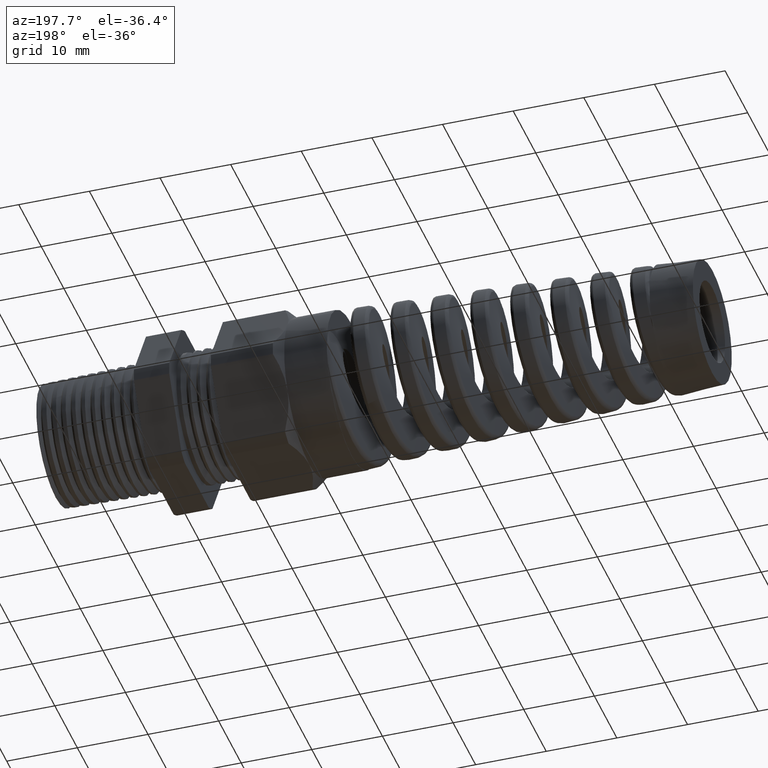
[diagram: clean part render]
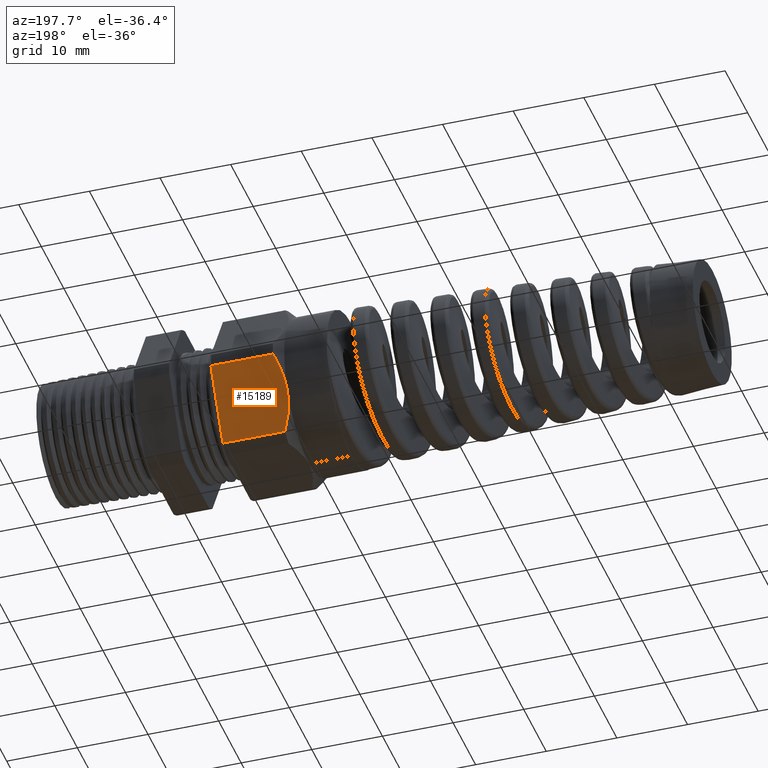
[diagram: same view with one face highlighted and labeled with its STEP entity id]
A machine part, auxiliary view. The second image highlights one B-rep face of the part: STEP entity #15189.
In plain terms, the highlighted planar face has unit normal (0, 0.866, -0.5).
Its self-contained STEP definition (entity closure, byte-faithful):
#13799 = CARTESIAN_POINT ( 'NONE',  ( -1.099157415158389600, 0.4648155211958816000, -0.06491590114212528200 ) ) ;
#13800 = CARTESIAN_POINT ( 'NONE',  ( -1.111286394514541500, 0.4475652507652401200, -0.09479424597229950400 ) ) ;
#13801 = CARTESIAN_POINT ( 'NONE',  ( -1.127942311785731900, 0.4126204045939865800, -0.1553204950035895800 ) ) ;
#13802 = CARTESIAN_POINT ( 'NONE',  ( -1.132519685039369700, 0.3948515912391095700, -0.1860969825244447300 ) ) ;
#13803 = CARTESIAN_POINT ( 'NONE',  ( -1.132519685039370400, 0.3767210506462311800, -0.2175000000000001400 ) ) ;
#13805 = CARTESIAN_POINT ( 'NONE',  ( -1.132519685039370400, 0.3767210506462311800, -0.2175000000000001400 ) ) ;
#13806 = CARTESIAN_POINT ( 'NONE',  ( -1.132519685039369500, 0.3676495597967362500, -0.2332122830517214500 ) ) ;
#13807 = CARTESIAN_POINT ( 'NONE',  ( -1.131354988471799500, 0.3584812283341806700, -0.2490922989655001400 ) ) ;
#13808 = CARTESIAN_POINT ( 'NONE',  ( -1.126908158158723200, 0.3405629272155460400, -0.2801277068882933000 ) ) ;
#13809 = CARTESIAN_POINT ( 'NONE',  ( -1.123634860337035400, 0.3317346034573627800, -0.2954188121831341500 ) ) ;
#13810 = CARTESIAN_POINT ( 'NONE',  ( -1.084669685039370400, 0.4815054990391101600, -0.03600801154045463900 ) ) ;
#13811 = B_SPLINE_CURVE_WITH_KNOTS ( 'NONE', 3,
 ( #13803, #13802, #13801, #13800, #13799, #13928 ),
 .UNSPECIFIED., .F., .F.,
 ( 4, 2, 4 ),
 ( 0.005463532759325801100, 0.008193301819514648900, 0.01092307087970349600 ),
 .UNSPECIFIED. ) ;
#13851 = DIRECTION ( 'NONE',  ( -1.000000000000000000, 0.0000000000000000000, 0.0000000000000000000 ) ) ;
#13852 = VECTOR ( 'NONE', #13851, 39.37007874015748100 ) ;
#13859 = CARTESIAN_POINT ( 'NONE',  ( 0.2800000000000000300, 0.2719366022533522000, -0.3989919884595455300 ) ) ;
#13860 = DIRECTION ( 'NONE',  ( 0.0000000000000000000, 0.4999999999999998300, 0.8660254037844386000 ) ) ;
#13861 = DIRECTION ( 'NONE',  ( 0.0000000000000000000, 0.8660254037844387100, -0.4999999999999998900 ) ) ;
#13862 = CARTESIAN_POINT ( 'NONE',  ( 0.2800000000000000300, 0.4815054990391101600, -0.03600801154045462500 ) ) ;
#13863 = AXIS2_PLACEMENT_3D ( 'NONE', #13862, #13861, #13860 ) ;
#13864 = LINE ( 'NONE', #13859, #13852 ) ;
#13865 = PLANE ( 'NONE',  #13863 ) ;
#13866 = FACE_OUTER_BOUND ( 'NONE', #15190, .T. ) ;
#13879 = CARTESIAN_POINT ( 'NONE',  ( -1.111099787961890500, 0.3055879730118451500, -0.3407061045614981400 ) ) ;
#13880 = CARTESIAN_POINT ( 'NONE',  ( -1.099139491192393700, 0.2886059315482661400, -0.3701198631926584900 ) ) ;
#13881 = CARTESIAN_POINT ( 'NONE',  ( -1.084669685039370400, 0.2719366022533522000, -0.3989919884595455300 ) ) ;
#13882 = B_SPLINE_CURVE_WITH_KNOTS ( 'NONE', 3,
 ( #13881, #13880, #13879, #13809, #13808, #13807, #13806, #13805 ),
 .UNSPECIFIED., .F., .F.,
 ( 4, 2, 2, 4 ),
 ( 2.483252225667815900E-007, 0.002731890542274185000, 0.004097711650799993300, 0.005463532759325801100 ),
 .UNSPECIFIED. ) ;
#13883 = CARTESIAN_POINT ( 'NONE',  ( -1.084669685039370400, 0.2719366022533522000, -0.3989919884595455300 ) ) ;
#13884 = CARTESIAN_POINT ( 'NONE',  ( -0.7388188976377955100, 0.2719366022533522000, -0.3989919884595455300 ) ) ;
#13928 = CARTESIAN_POINT ( 'NONE',  ( -1.084669685039370400, 0.4815054990391101600, -0.03600801154045463900 ) ) ;
#13998 = CARTESIAN_POINT ( 'NONE',  ( -0.7388188976377955100, 0.4679710506462310700, -0.05945036380934009400 ) ) ;
#13999 = LINE ( 'NONE', #13998, #14120 ) ;
#14030 = CARTESIAN_POINT ( 'NONE',  ( -0.7388188976377955100, 0.4815054990391101100, -0.03600801154045462500 ) ) ;
#14119 = DIRECTION ( 'NONE',  ( 0.0000000000000000000, 0.4999999999999998300, 0.8660254037844386000 ) ) ;
#14120 = VECTOR ( 'NONE', #14119, 39.37007874015748900 ) ;
#14941 = CARTESIAN_POINT ( 'NONE',  ( -1.132519685039370400, 0.3767210506462311800, -0.2175000000000001400 ) ) ;
#15030 = DIRECTION ( 'NONE',  ( -1.000000000000000000, 0.0000000000000000000, 0.0000000000000000000 ) ) ;
#15031 = VECTOR ( 'NONE', #15030, 39.37007874015748100 ) ;
#15032 = CARTESIAN_POINT ( 'NONE',  ( 0.2800000000000000300, 0.4815054990391101600, -0.03600801154045462500 ) ) ;
#15033 = LINE ( 'NONE', #15032, #15031 ) ;
#15052 = EDGE_CURVE ( 'NONE', #15224, #15172, #15033, .T. ) ;
#15066 = VERTEX_POINT ( 'NONE', #14941 ) ;
#15166 = VERTEX_POINT ( 'NONE', #13884 ) ;
#15167 = VERTEX_POINT ( 'NONE', #13883 ) ;
#15168 = ORIENTED_EDGE ( 'NONE', *, *, #15169, .T. ) ;
#15169 = EDGE_CURVE ( 'NONE', #15167, #15066, #13882, .T. ) ;
#15170 = ORIENTED_EDGE ( 'NONE', *, *, #15171, .T. ) ;
#15171 = EDGE_CURVE ( 'NONE', #15066, #15172, #13811, .T. ) ;
#15172 = VERTEX_POINT ( 'NONE', #13810 ) ;
#15173 = ORIENTED_EDGE ( 'NONE', *, *, #15052, .F. ) ;
#15189 = ADVANCED_FACE ( 'NONE', ( #13866 ), #13865, .T. ) ;
#15190 = EDGE_LOOP ( 'NONE', ( #15191, #15168, #15170, #15173, #15225 ) ) ;
#15191 = ORIENTED_EDGE ( 'NONE', *, *, #15192, .T. ) ;
#15192 = EDGE_CURVE ( 'NONE', #15166, #15167, #13864, .T. ) ;
#15213 = EDGE_CURVE ( 'NONE', #15166, #15224, #13999, .T. ) ;
#15224 = VERTEX_POINT ( 'NONE', #14030 ) ;
#15225 = ORIENTED_EDGE ( 'NONE', *, *, #15213, .F. ) ;